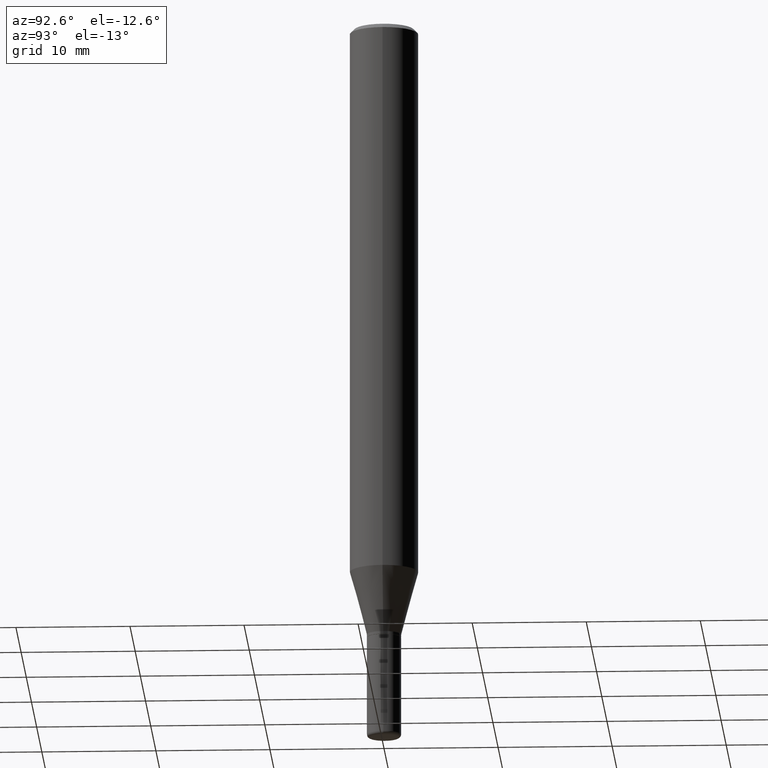
[diagram: clean part render]
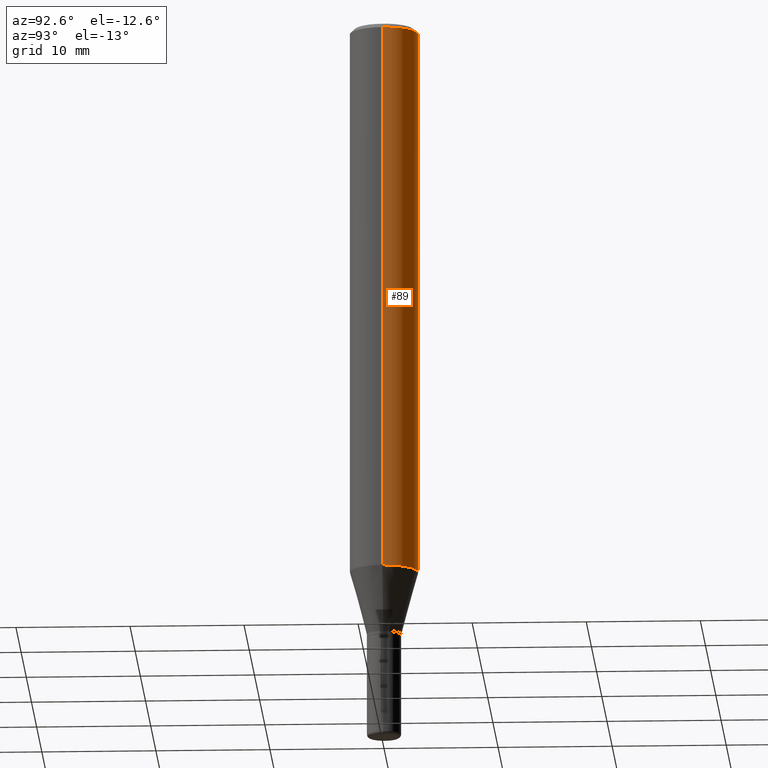
[diagram: same view with one face highlighted and labeled with its STEP entity id]
A machine part, auxiliary view. The second image highlights one B-rep face of the part: STEP entity #89.
In plain terms, the highlighted cylindrical surface (edge-blend (fillet) strip) has radius 2.9997 mm, axis along (-0, 0, 1).
Its self-contained STEP definition (entity closure, byte-faithful):
#30 = CARTESIAN_POINT ( 'NONE',  ( 0.1180999999999999966, -7.512000309050311391E-15, -1.915322399813057963 ) ) ;
#59 = AXIS2_PLACEMENT_3D ( 'NONE', #506, #193, #229 ) ;
#80 = ORIENTED_EDGE ( 'NONE', *, *, #316, .T. ) ;
#89 = ADVANCED_FACE ( 'NONE', ( #93 ), #418, .T. ) ;
#93 = FACE_OUTER_BOUND ( 'NONE', #146, .T. ) ;
#97 = CARTESIAN_POINT ( 'NONE',  ( 0.1180999999999999966, -8.246878922347480654E-16, 5.758764772215000440E-30 ) ) ;
#100 = DIRECTION ( 'NONE',  ( 1.000000000000000000, -6.982962677686266711E-15, 0.000000000000000000 ) ) ;
#113 = ORIENTED_EDGE ( 'NONE', *, *, #142, .F. ) ;
#115 = AXIS2_PLACEMENT_3D ( 'NONE', #141, #312, #100 ) ;
#121 = ORIENTED_EDGE ( 'NONE', *, *, #177, .F. ) ;
#127 = VERTEX_POINT ( 'NONE', #175 ) ;
#132 = DIRECTION ( 'NONE',  ( -2.445468806185136597E-29, 3.491481338843145583E-15, 1.000000000000000000 ) ) ;
#134 = AXIS2_PLACEMENT_3D ( 'NONE', #305, #132, #456 ) ;
#141 = CARTESIAN_POINT ( 'NONE',  ( 3.668203209277694140E-31, -5.237222008264703607E-17, -0.01499999999999995781 ) ) ;
#142 = EDGE_CURVE ( 'NONE', #319, #322, #311, .T. ) ;
#146 = EDGE_LOOP ( 'NONE', ( #80, #375, #121, #113 ) ) ;
#158 = LINE ( 'NONE', #445, #267 ) ;
#167 = DIRECTION ( 'NONE',  ( -2.445468806185136877E-29, 3.491481338843145188E-15, 1.000000000000000000 ) ) ;
#175 = CARTESIAN_POINT ( 'NONE',  ( -0.1180999999999999966, -2.530691347516425921E-15, -0.01499999999999995781 ) ) ;
#177 = EDGE_CURVE ( 'NONE', #322, #127, #415, .T. ) ;
#185 = CARTESIAN_POINT ( 'NONE',  ( 0.1180999999999999966, -8.770601123173951446E-16, -0.01499999999999995781 ) ) ;
#193 = DIRECTION ( 'NONE',  ( -2.445468806185136597E-29, 3.491481338843145583E-15, 1.000000000000000000 ) ) ;
#229 = DIRECTION ( 'NONE',  ( 1.000000000000000000, -6.982962677686265133E-15, 0.000000000000000000 ) ) ;
#237 = VECTOR ( 'NONE', #421, 39.37007874015748143 ) ;
#267 = VECTOR ( 'NONE', #167, 39.37007874015748143 ) ;
#305 = CARTESIAN_POINT ( 'NONE',  ( 0.000000000000000000, 0.000000000000000000, 0.000000000000000000 ) ) ;
#311 = LINE ( 'NONE', #97, #237 ) ;
#312 = DIRECTION ( 'NONE',  ( -2.445468806185136597E-29, 3.491481338843145583E-15, 1.000000000000000000 ) ) ;
#316 = EDGE_CURVE ( 'NONE', #319, #327, #350, .T. ) ;
#318 = CARTESIAN_POINT ( 'NONE',  ( -0.1180999999999999966, -5.848161445882884932E-15, -1.915322399813057963 ) ) ;
#319 = VERTEX_POINT ( 'NONE', #30 ) ;
#322 = VERTEX_POINT ( 'NONE', #185 ) ;
#327 = VERTEX_POINT ( 'NONE', #318 ) ;
#332 = EDGE_CURVE ( 'NONE', #327, #127, #158, .T. ) ;
#350 = CIRCLE ( 'NONE', #59, 0.1180999999999999966 ) ;
#375 = ORIENTED_EDGE ( 'NONE', *, *, #332, .T. ) ;
#415 = CIRCLE ( 'NONE', #115, 0.1180999999999999966 ) ;
#418 = CYLINDRICAL_SURFACE ( 'NONE', #134, 0.1180999999999999966 ) ;
#421 = DIRECTION ( 'NONE',  ( -2.445468806185136877E-29, 3.491481338843145188E-15, 1.000000000000000000 ) ) ;
#445 = CARTESIAN_POINT ( 'NONE',  ( -0.1180999999999999966, 8.391509709326782957E-16, -5.809262341591043784E-30 ) ) ;
#456 = DIRECTION ( 'NONE',  ( 1.000000000000000000, -6.982962677686266711E-15, 4.876176775795936353E-29 ) ) ;
#506 = CARTESIAN_POINT ( 'NONE',  ( 4.683861182530489821E-29, -6.687312416815562340E-15, -1.915322399813057963 ) ) ;